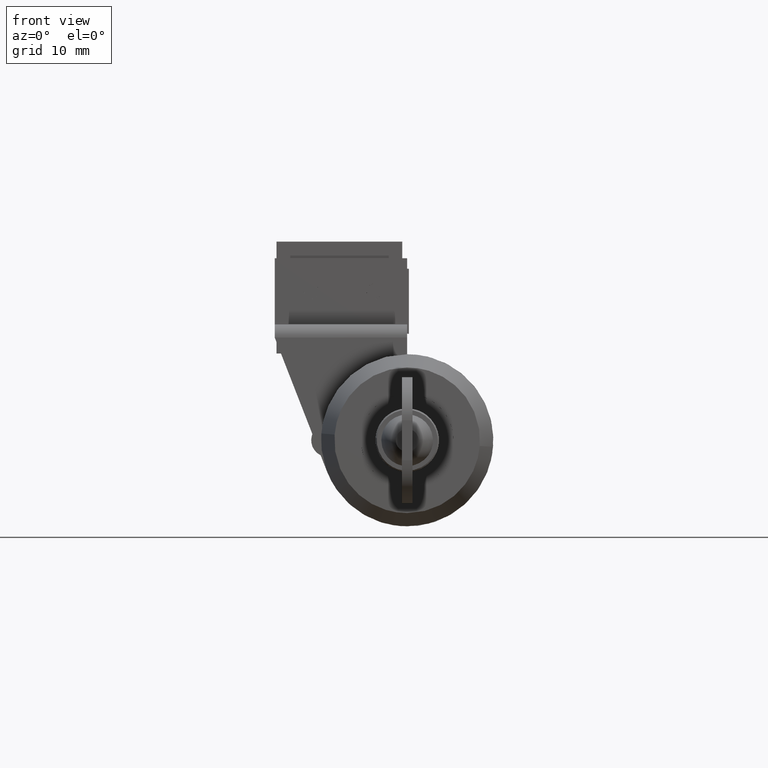
[diagram: clean part render]
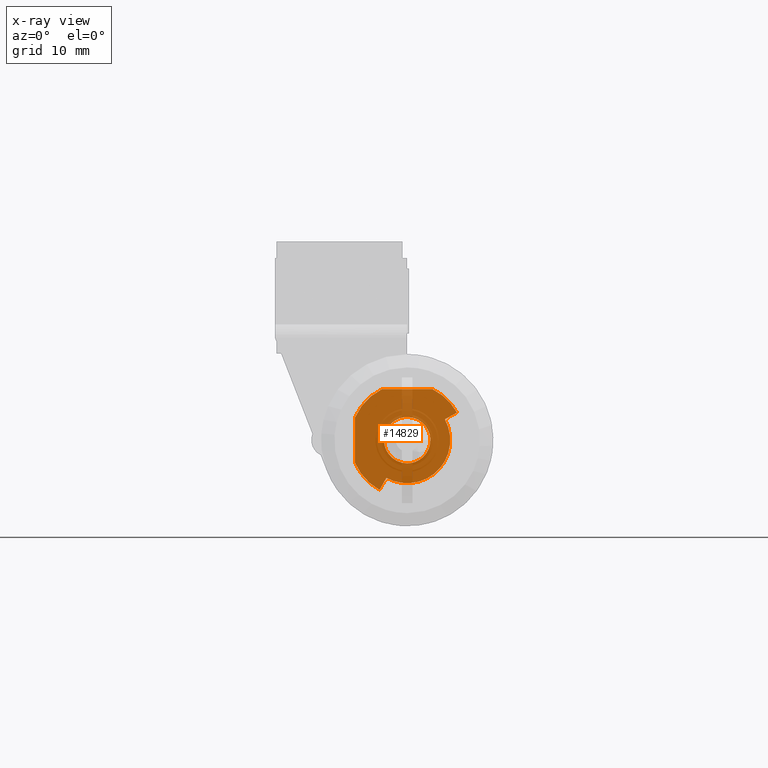
[diagram: x-ray — body ghosted, one internal face saturated and labeled with its STEP entity id]
A machine part, front view, then the same camera in x-ray: the body is ghosted and one INTERNAL B-rep face — a face not visible from any outside direction — is saturated and labeled: STEP entity #14829.
In plain terms, the highlighted face is a freeform B-spline surface patch.
Its self-contained STEP definition (entity closure, byte-faithful):
#14312=CARTESIAN_POINT('',(22.100006000000050,0.0,3.500000000000000));
#14313=VERTEX_POINT('',#14312);
#14314=CARTESIAN_POINT('',(22.100006000000050,-3.489210668057538,0.274606835154310));
#14315=VERTEX_POINT('',#14314);
#14316=CARTESIAN_POINT('',(22.100006000000050,0.0,3.500000000000000));
#14317=CARTESIAN_POINT('',(22.100006000000040,-3.235366720604958,3.500000000000000));
#14318=CARTESIAN_POINT('',(22.100006000000043,-3.489210668057539,0.274606835154310));
#14326=(BOUNDED_CURVE()B_SPLINE_CURVE(2,(#14316,#14317,#14318),.UNSPECIFIED.,.F.,.U.)B_SPLINE_CURVE_WITH_KNOTS((3,3),(0.0,0.236331300622268),.UNSPECIFIED.)CURVE()GEOMETRIC_REPRESENTATION_ITEM()RATIONAL_B_SPLINE_CURVE((1.0,0.723120658617497,0.969723356149905))REPRESENTATION_ITEM(''));
#14327=EDGE_CURVE('',#14313,#14315,#14326,.T.);
#14329=CARTESIAN_POINT('',(22.100006000000050,3.489210668057538,-0.274606835154310));
#14330=VERTEX_POINT('',#14329);
#14331=CARTESIAN_POINT('',(22.100006000000047,3.489210668057539,-0.274606835154310));
#14332=CARTESIAN_POINT('',(22.100006000000047,3.499999999999999,-0.137515374634191));
#14333=CARTESIAN_POINT('',(22.100006000000050,3.500000000000000,0.0));
#14334=CARTESIAN_POINT('',(22.100006000000047,3.500000000000000,3.500000000000000));
#14335=CARTESIAN_POINT('',(22.100006000000050,0.0,3.500000000000000));
#14343=(BOUNDED_CURVE()B_SPLINE_CURVE(2,(#14331,#14332,#14333,#14334,#14335),.UNSPECIFIED.,.F.,.U.)B_SPLINE_CURVE_WITH_KNOTS((3,2,3),(0.736331300622268,0.750000000000000,1.0),.UNSPECIFIED.)CURVE()GEOMETRIC_REPRESENTATION_ITEM()RATIONAL_B_SPLINE_CURVE((0.969723356149904,0.983986122569050,1.0,0.707106781186547,1.0))REPRESENTATION_ITEM(''));
#14344=EDGE_CURVE('',#14330,#14313,#14343,.T.);
#14411=CARTESIAN_POINT('',(22.100006000000050,0.0,-3.500000000000000));
#14412=VERTEX_POINT('',#14411);
#14413=CARTESIAN_POINT('',(22.100006000000047,-3.489210668057539,0.274606835154310));
#14414=CARTESIAN_POINT('',(22.100006000000047,-3.500000000000000,0.137515374634191));
#14415=CARTESIAN_POINT('',(22.100006000000050,-3.500000000000000,0.0));
#14416=CARTESIAN_POINT('',(22.100006000000047,-3.500000000000000,-3.500000000000000));
#14417=CARTESIAN_POINT('',(22.100006000000050,0.0,-3.500000000000000));
#14425=(BOUNDED_CURVE()B_SPLINE_CURVE(2,(#14413,#14414,#14415,#14416,#14417),.UNSPECIFIED.,.F.,.U.)B_SPLINE_CURVE_WITH_KNOTS((3,2,3),(0.236331300622268,0.250000000000000,0.500000000000000),.UNSPECIFIED.)CURVE()GEOMETRIC_REPRESENTATION_ITEM()RATIONAL_B_SPLINE_CURVE((0.969723356149904,0.983986122569050,1.0,0.707106781186547,1.0))REPRESENTATION_ITEM(''));
#14426=EDGE_CURVE('',#14315,#14412,#14425,.T.);
#14460=CARTESIAN_POINT('',(22.100006000000050,0.0,-3.500000000000000));
#14461=CARTESIAN_POINT('',(22.100006000000043,3.235366720604958,-3.500000000000000));
#14462=CARTESIAN_POINT('',(22.100006000000050,3.489210668057538,-0.274606835154310));
#14470=(BOUNDED_CURVE()B_SPLINE_CURVE(2,(#14460,#14461,#14462),.UNSPECIFIED.,.F.,.U.)B_SPLINE_CURVE_WITH_KNOTS((3,3),(0.500000000000000,0.736331300622268),.UNSPECIFIED.)CURVE()GEOMETRIC_REPRESENTATION_ITEM()RATIONAL_B_SPLINE_CURVE((1.0,0.723120658617497,0.969723356149905))REPRESENTATION_ITEM(''));
#14471=EDGE_CURVE('',#14412,#14330,#14470,.T.);
#14490=CARTESIAN_POINT('',(22.100006000000050,-3.830181797204610,7.699981000000090));
#14491=VERTEX_POINT('',#14490);
#14492=CARTESIAN_POINT('',(22.100006000000050,-7.521734866306479,4.169353019473100));
#14493=VERTEX_POINT('',#14492);
#14494=CARTESIAN_POINT('',(22.100006000000050,-3.830181797204614,7.699981000000093));
#14495=CARTESIAN_POINT('',(22.100006000000047,-6.224999269351041,6.508733087902296));
#14496=CARTESIAN_POINT('',(22.100006000000050,-7.521734866306480,4.169353019473098));
#14504=(BOUNDED_CURVE()B_SPLINE_CURVE(2,(#14494,#14495,#14496),.UNSPECIFIED.,.F.,.U.)CURVE()GEOMETRIC_REPRESENTATION_ITEM()QUASI_UNIFORM_CURVE()RATIONAL_B_SPLINE_CURVE((1.0,0.954882527980719,1.0))REPRESENTATION_ITEM(''));
#14505=EDGE_CURVE('',#14491,#14493,#14504,.T.);
#14542=CARTESIAN_POINT('',(22.100006000000050,3.830181797204605,7.699981000000090));
#14543=VERTEX_POINT('',#14542);
#14544=CARTESIAN_POINT('',(22.100006000000050,3.830181797204605,7.699981000000090));
#14545=CARTESIAN_POINT('',(22.100006000000050,-3.830181797204610,7.699981000000090));
#14546=QUASI_UNIFORM_CURVE('',1,(#14544,#14545),.UNSPECIFIED.,.F.,.U.);
#14547=EDGE_CURVE('',#14543,#14491,#14546,.T.);
#14579=CARTESIAN_POINT('',(22.100006000000050,7.899994530963479,3.398541806532175));
#14580=VERTEX_POINT('',#14579);
#14581=CARTESIAN_POINT('',(22.100006000000050,7.899994530963489,3.398541806532175));
#14582=CARTESIAN_POINT('',(22.100006000000047,6.653754021163772,6.295458711529411));
#14583=CARTESIAN_POINT('',(22.100006000000050,3.830181797204610,7.699981000000095));
#14591=(BOUNDED_CURVE()B_SPLINE_CURVE(2,(#14581,#14582,#14583),.UNSPECIFIED.,.F.,.U.)CURVE()GEOMETRIC_REPRESENTATION_ITEM()QUASI_UNIFORM_CURVE()RATIONAL_B_SPLINE_CURVE((1.0,0.938866626367840,1.0))REPRESENTATION_ITEM(''));
#14592=EDGE_CURVE('',#14580,#14543,#14591,.T.);
#14623=CARTESIAN_POINT('',(22.100006000000050,7.899996452863821,-3.398537339023820));
#14624=VERTEX_POINT('',#14623);
#14625=CARTESIAN_POINT('',(22.100006000000050,7.899996452863821,-3.398537339023820));
#14626=CARTESIAN_POINT('',(22.100006000000050,7.899994530963479,3.398541806532175));
#14627=QUASI_UNIFORM_CURVE('',1,(#14625,#14626),.UNSPECIFIED.,.F.,.U.);
#14628=EDGE_CURVE('',#14624,#14580,#14627,.T.);
#14660=CARTESIAN_POINT('',(22.100006000000050,4.169400100153634,-7.521708768945980));
#14661=VERTEX_POINT('',#14660);
#14662=CARTESIAN_POINT('',(22.100006000000050,4.169400100153632,-7.521708768945983));
#14663=CARTESIAN_POINT('',(22.100006000000043,6.738981318574984,-6.097349953875804));
#14664=CARTESIAN_POINT('',(22.100006000000050,7.899996452863816,-3.398537339023825));
#14672=(BOUNDED_CURVE()B_SPLINE_CURVE(2,(#14662,#14663,#14664),.UNSPECIFIED.,.F.,.U.)CURVE()GEOMETRIC_REPRESENTATION_ITEM()QUASI_UNIFORM_CURVE()RATIONAL_B_SPLINE_CURVE((1.0,0.946303953083726,1.0))REPRESENTATION_ITEM(''));
#14673=EDGE_CURVE('',#14661,#14624,#14672,.T.);
#14704=CARTESIAN_POINT('',(22.100006000000050,3.151239242595875,-5.685041005650160));
#14705=VERTEX_POINT('',#14704);
#14706=CARTESIAN_POINT('',(22.100006000000050,3.151239242595875,-5.685041005650160));
#14707=CARTESIAN_POINT('',(22.100006000000050,4.169400100153634,-7.521708768945980));
#14708=QUASI_UNIFORM_CURVE('',1,(#14706,#14707),.UNSPECIFIED.,.F.,.U.);
#14709=EDGE_CURVE('',#14705,#14661,#14708,.T.);
#14745=CARTESIAN_POINT('',(22.100006000000050,-5.685003105935659,3.151307615181665));
#14746=VERTEX_POINT('',#14745);
#14747=CARTESIAN_POINT('',(22.100006000000050,-5.685003105935656,3.151307615181662));
#14748=CARTESIAN_POINT('',(22.100006000000050,-8.059688457826642,-1.132658042782811));
#14749=CARTESIAN_POINT('',(22.100006000000050,-4.596221716367776,-4.596166438891140));
#14750=CARTESIAN_POINT('',(22.100006000000050,-1.132754974908911,-8.059674834999468));
#14751=CARTESIAN_POINT('',(22.100006000000050,3.151239242595874,-5.685041005650160));
#14759=(BOUNDED_CURVE()B_SPLINE_CURVE(2,(#14747,#14748,#14749,#14750,#14751),.UNSPECIFIED.,.F.,.U.)B_SPLINE_CURVE_WITH_KNOTS((3,2,3),(0.0,0.500000000000000,1.0),.UNSPECIFIED.)CURVE()GEOMETRIC_REPRESENTATION_ITEM()RATIONAL_B_SPLINE_CURVE((1.0,0.798634933252138,1.0,0.798634933252138,1.0))REPRESENTATION_ITEM(''));
#14760=EDGE_CURVE('',#14746,#14705,#14759,.T.);
#14793=CARTESIAN_POINT('',(22.100006000000050,-7.521734866306479,4.169353019473100));
#14794=CARTESIAN_POINT('',(22.100006000000050,-5.685003105935659,3.151307615181665));
#14795=QUASI_UNIFORM_CURVE('',1,(#14793,#14794),.UNSPECIFIED.,.F.,.U.);
#14796=EDGE_CURVE('',#14493,#14746,#14795,.T.);
#14808=CARTESIAN_POINT('',(22.100006000000100,-8.292050171040549,8.460304660237021));
#14809=CARTESIAN_POINT('',(22.100006000000100,8.670312309121977,8.460304660237021));
#14810=CARTESIAN_POINT('',(22.100006000000100,-8.292050171040549,-8.282032565275426));
#14811=CARTESIAN_POINT('',(22.100006000000100,8.670312309121977,-8.282032565275426));
#14812=B_SPLINE_SURFACE_WITH_KNOTS('',1,1,((#14808,#14810),(#14809,#14811)),.UNSPECIFIED.,.F.,.F.,.U.,(2,2),(2,2),(0.0,16.962362480162529),(0.0,16.742337225512451),.UNSPECIFIED.);
#14813=ORIENTED_EDGE('',*,*,#14796,.F.);
#14814=ORIENTED_EDGE('',*,*,#14505,.F.);
#14815=ORIENTED_EDGE('',*,*,#14547,.F.);
#14816=ORIENTED_EDGE('',*,*,#14592,.F.);
#14817=ORIENTED_EDGE('',*,*,#14628,.F.);
#14818=ORIENTED_EDGE('',*,*,#14673,.F.);
#14819=ORIENTED_EDGE('',*,*,#14709,.F.);
#14820=ORIENTED_EDGE('',*,*,#14760,.F.);
#14821=EDGE_LOOP('',(#14813,#14814,#14815,#14816,#14817,#14818,#14819,#14820));
#14822=FACE_OUTER_BOUND('',#14821,.T.);
#14823=ORIENTED_EDGE('',*,*,#14471,.T.);
#14824=ORIENTED_EDGE('',*,*,#14344,.T.);
#14825=ORIENTED_EDGE('',*,*,#14327,.T.);
#14826=ORIENTED_EDGE('',*,*,#14426,.T.);
#14827=EDGE_LOOP('',(#14823,#14824,#14825,#14826));
#14828=FACE_BOUND('',#14827,.T.);
#14829=ADVANCED_FACE('',(#14822,#14828),#14812,.T.);